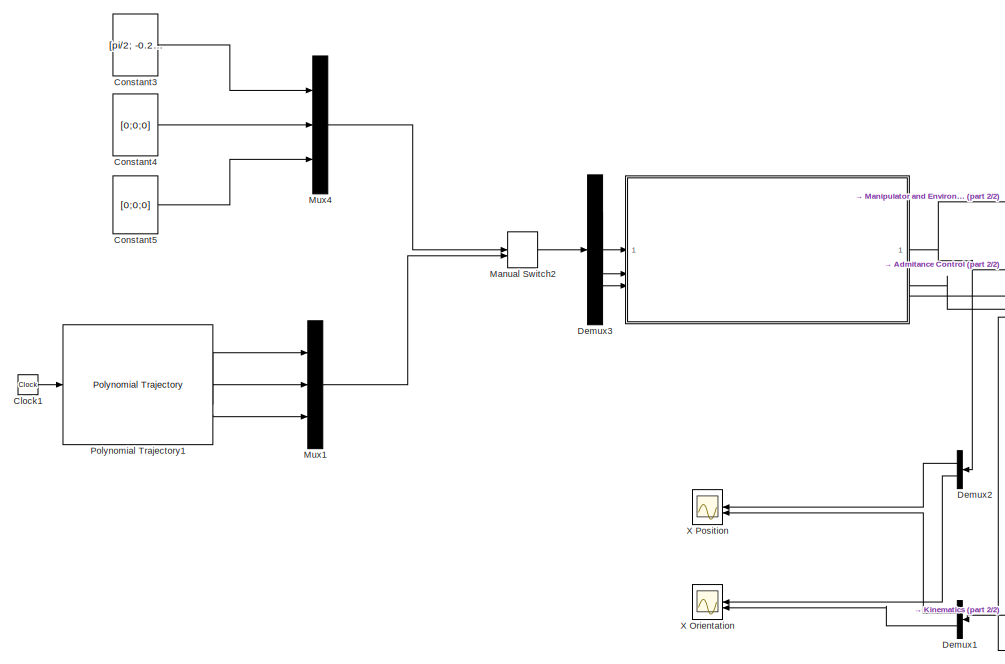
[diagram: root canvas - part 1/2, left side, full height]
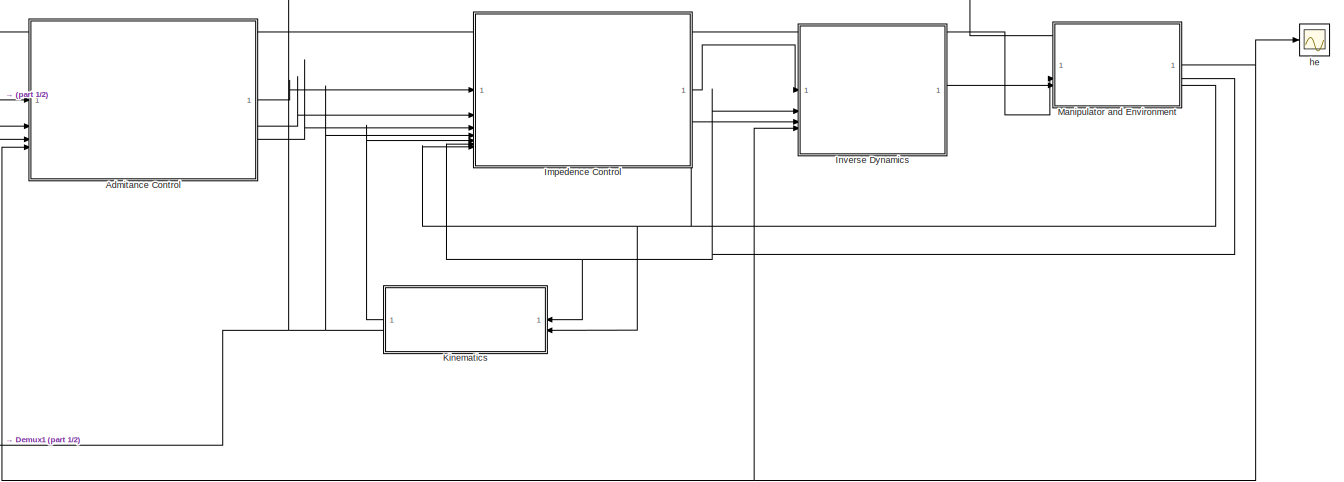
[diagram: root canvas - part 2/2, middle right region]
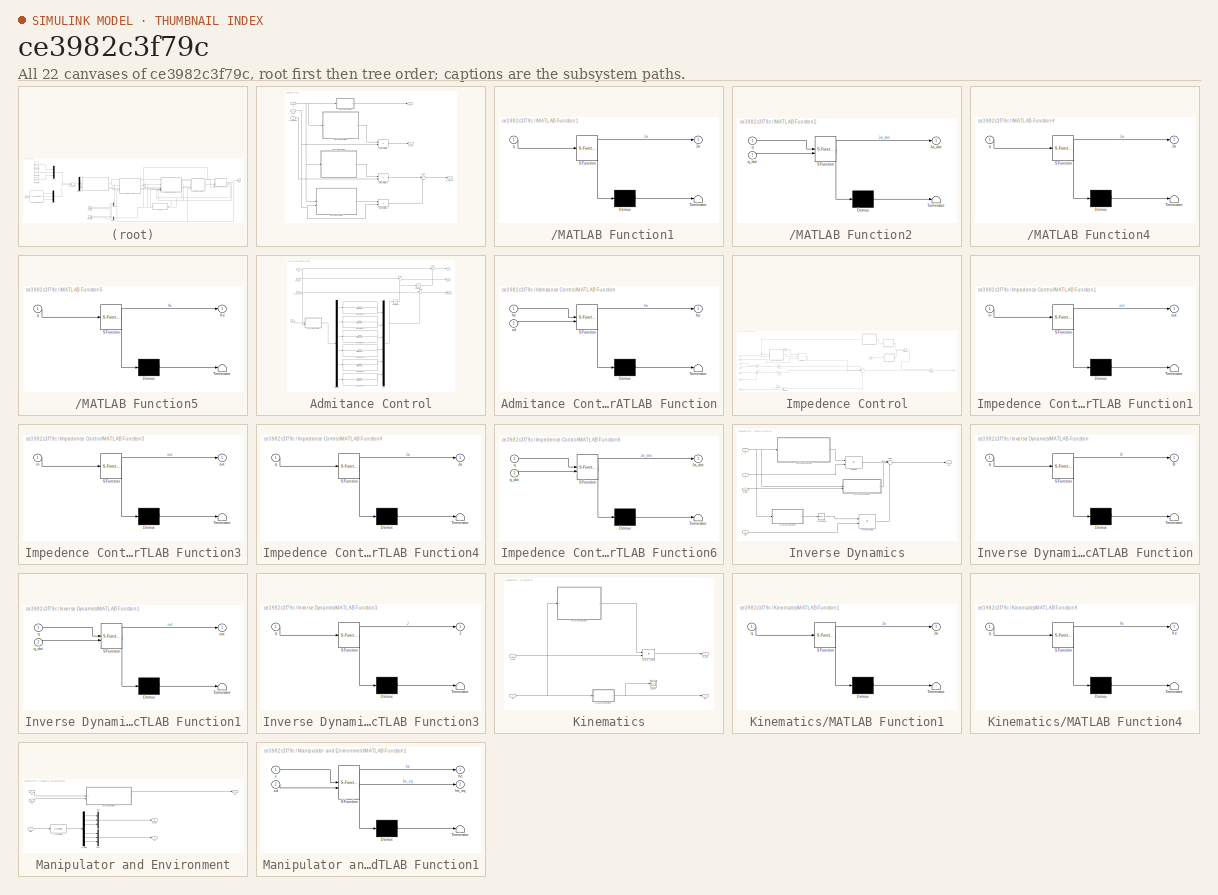
[diagram: thumbnail index - all 22 canvases of the model, root first then tree order]
MODEL slx_ce3982c3f79c
KIND model
CONFIG AbsTol = auto
CONFIG EnableMultiTasking = off
CONFIG FixedStep = auto
CONFIG MaxStep = auto
CONFIG MinStep = auto
CONFIG RelTol = 1e-3
CONFIG SampleTimeConstraint = Unconstrained
CONFIG SolverName = VariableStepAuto
CONFIG StartTime = 0.0
CONFIG StopTime = 10.0
BLOCK [SubSystem]  
BLOCK [SubSystem]  /MATLAB Function1
  ErrorFcn = Stateflow.Translate.translate
  LibrarySourceBlock = simulink/User-Defined\nFunctions/MATLAB Function
  NameLocation = top
  PermitHierarchicalResolution = ExplicitOnly
  SFBlockType = MATLAB Function
  TreatAsAtomicUnit = on
BLOCK [Demux]  /MATLAB Function1/ Demux 
  Outputs = 1
BLOCK [S-Function]  /MATLAB Function1/ SFunction 
  EnableBusSupport = on
  FunctionName = sf_sfun
  PortCounts = [1 2]
  SFcnIsStateOwnerBlock = off
  SFunctionDeploymentMode = off
  Tag = Stateflow S-Function 3
BLOCK [Terminator]  /MATLAB Function1/ Terminator 
BLOCK [Outport]  /MATLAB Function1/Ja
BLOCK [Inport]  /MATLAB Function1/q
BLOCK [SubSystem]  /MATLAB Function2
  ErrorFcn = Stateflow.Translate.translate
  LibrarySourceBlock = simulink/User-Defined\nFunctions/MATLAB Function
  PermitHierarchicalResolution = ExplicitOnly
  SFBlockType = MATLAB Function
  TreatAsAtomicUnit = on
BLOCK [Demux]  /MATLAB Function2/ Demux 
  Outputs = 1
BLOCK [S-Function]  /MATLAB Function2/ SFunction 
  EnableBusSupport = on
  FunctionName = sf_sfun
  PortCounts = [2 2]
  SFcnIsStateOwnerBlock = off
  SFunctionDeploymentMode = off
  Tag = Stateflow S-Function 18
BLOCK [Terminator]  /MATLAB Function2/ Terminator 
BLOCK [Outport]  /MATLAB Function2/Ja_dot
BLOCK [Inport]  /MATLAB Function2/q
BLOCK [Inport]  /MATLAB Function2/q_dot
  Port = 2
BLOCK [SubSystem]  /MATLAB Function4
  ErrorFcn = Stateflow.Translate.translate
  LibrarySourceBlock = simulink/User-Defined\nFunctions/MATLAB Function
  NameLocation = top
  PermitHierarchicalResolution = ExplicitOnly
  SFBlockType = MATLAB Function
  TreatAsAtomicUnit = on
BLOCK [Demux]  /MATLAB Function4/ Demux 
  Outputs = 1
BLOCK [S-Function]  /MATLAB Function4/ SFunction 
  EnableBusSupport = on
  FunctionName = sf_sfun
  PortCounts = [1 2]
  SFcnIsStateOwnerBlock = off
  SFunctionDeploymentMode = off
  Tag = Stateflow S-Function 19
BLOCK [Terminator]  /MATLAB Function4/ Terminator 
BLOCK [Outport]  /MATLAB Function4/Ja
BLOCK [Inport]  /MATLAB Function4/q
BLOCK [SubSystem]  /MATLAB Function5
  ErrorFcn = Stateflow.Translate.translate
  LibrarySourceBlock = simulink/User-Defined\nFunctions/MATLAB Function
  NameLocation = top
  PermitHierarchicalResolution = ExplicitOnly
  SFBlockType = MATLAB Function
  TreatAsAtomicUnit = on
BLOCK [Demux]  /MATLAB Function5/ Demux 
  Outputs = 1
BLOCK [S-Function]  /MATLAB Function5/ SFunction 
  EnableBusSupport = on
  FunctionName = sf_sfun
  PortCounts = [1 2]
  SFcnIsStateOwnerBlock = off
  SFunctionDeploymentMode = off
  Tag = Stateflow S-Function 20
BLOCK [Terminator]  /MATLAB Function5/ Terminator 
BLOCK [Outport]  /MATLAB Function5/Xe
BLOCK [Inport]  /MATLAB Function5/q
BLOCK [Product]  /Matrix Multiply
  Multiplication = Matrix(*)
BLOCK [Product]  /Matrix Multiply1
  LockScale = on
  Multiplication = Matrix(*)
  SaturateOnIntegerOverflow = on
BLOCK [Product]  /Matrix Multiply2
  InputSameDT = on
  Multiplication = Matrix(*)
  SaturateOnIntegerOverflow = on
BLOCK [Sum]  /Sum
  Inputs = |++
BLOCK [Outport]  /X
BLOCK [Inport]  /q
BLOCK [Inport]  /q_dot
  Port = 2
BLOCK [Inport]  /q_dot_dot
  Port = 3
BLOCK [Outport]  /x_dot
  Port = 2
BLOCK [Outport]  /x_dot_dot
  Port = 3
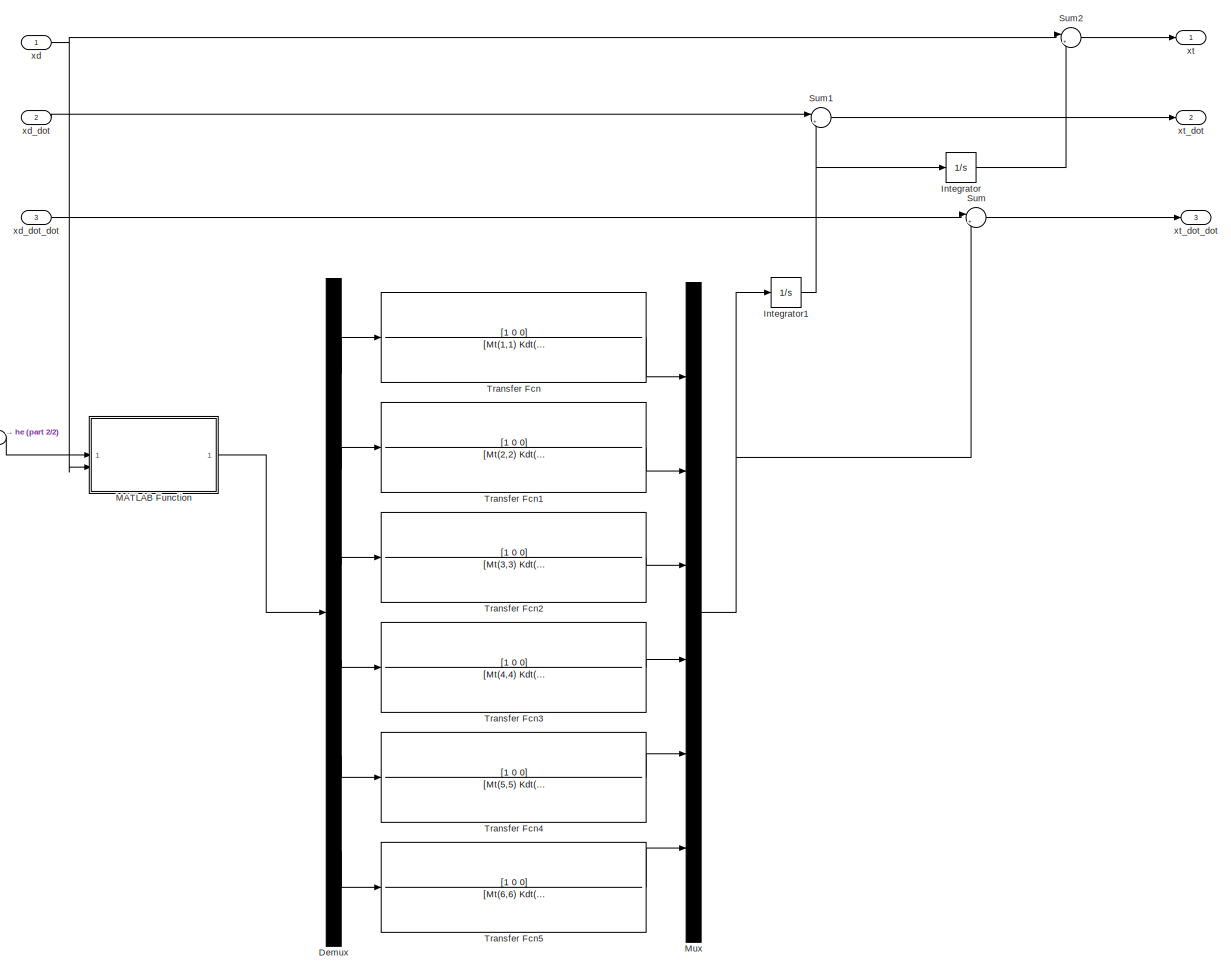
[diagram: Admitance Control - part 1/2, most of the canvas]
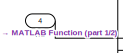
[diagram: Admitance Control - part 2/2, middle left region]
BLOCK [SubSystem] Admitance Control
BLOCK [Demux] Admitance Control/Demux
  Outputs = 6
BLOCK [Integrator] Admitance Control/Integrator
BLOCK [Integrator] Admitance Control/Integrator1
BLOCK [SubSystem] Admitance Control/MATLAB Function
  ErrorFcn = Stateflow.Translate.translate
  LibrarySourceBlock = simulink/User-Defined\nFunctions/MATLAB Function
  PermitHierarchicalResolution = ExplicitOnly
  SFBlockType = MATLAB Function
  TreatAsAtomicUnit = on
BLOCK [Demux] Admitance Control/MATLAB Function/ Demux 
  Outputs = 1
BLOCK [S-Function] Admitance Control/MATLAB Function/ SFunction 
  EnableBusSupport = on
  FunctionName = sf_sfun
  PortCounts = [2 2]
  SFcnIsStateOwnerBlock = off
  SFunctionDeploymentMode = off
  Tag = Stateflow S-Function 4
BLOCK [Terminator] Admitance Control/MATLAB Function/ Terminator 
BLOCK [Outport] Admitance Control/MATLAB Function/ha
BLOCK [Inport] Admitance Control/MATLAB Function/he
BLOCK [Inport] Admitance Control/MATLAB Function/xd
  Port = 2
BLOCK [Mux] Admitance Control/Mux
  DisplayOption = bar
  Inputs = 6
BLOCK [Sum] Admitance Control/Sum
  Inputs = |+-
BLOCK [Sum] Admitance Control/Sum1
  Inputs = |+-
BLOCK [Sum] Admitance Control/Sum2
  Inputs = |+-
BLOCK [TransferFcn] Admitance Control/Transfer Fcn
  Denominator = [Mt(1,1) Kdt(1,1) Kpt(1,1)];
  Numerator = [1 0 0]
BLOCK [TransferFcn] Admitance Control/Transfer Fcn1
  Denominator = [Mt(2,2) Kdt(2,2) Kpt(2,2)];
  Numerator = [1 0 0]
BLOCK [TransferFcn] Admitance Control/Transfer Fcn2
  Denominator = [Mt(3,3) Kdt(3,3) Kpt(3,3)];
  Numerator = [1 0 0]
BLOCK [TransferFcn] Admitance Control/Transfer Fcn3
  Denominator = [Mt(4,4) Kdt(4,4) Kpt(4,4)];
  Numerator = [1 0 0]
BLOCK [TransferFcn] Admitance Control/Transfer Fcn4
  Denominator = [Mt(5,5) Kdt(5,5) Kpt(5,5)];
  Numerator = [1 0 0]
BLOCK [TransferFcn] Admitance Control/Transfer Fcn5
  Denominator = [Mt(6,6) Kdt(6,6) Kpt(6,6)];
  Numerator = [1 0 0]
BLOCK [Inport] Admitance Control/he
  Port = 4
BLOCK [Inport] Admitance Control/xd
BLOCK [Inport] Admitance Control/xd_dot
  Port = 2
BLOCK [Inport] Admitance Control/xd_dot_dot
  Port = 3
BLOCK [Outport] Admitance Control/xt
BLOCK [Outport] Admitance Control/xt_dot
  Port = 2
BLOCK [Outport] Admitance Control/xt_dot_dot
  Port = 3
BLOCK [Clock] Clock1
BLOCK [Constant] Constant3
  Value = [pi/2; -0.2; 0.1]
  VectorParams1D = off
BLOCK [Constant] Constant4
  Value = [0;0;0]
  VectorParams1D = off
BLOCK [Constant] Constant5
  Value = [0;0;0]
  VectorParams1D = off
BLOCK [Demux] Demux1
  Outputs = 2
BLOCK [Demux] Demux2
  Outputs = 2
BLOCK [Demux] Demux3
  Outputs = 3
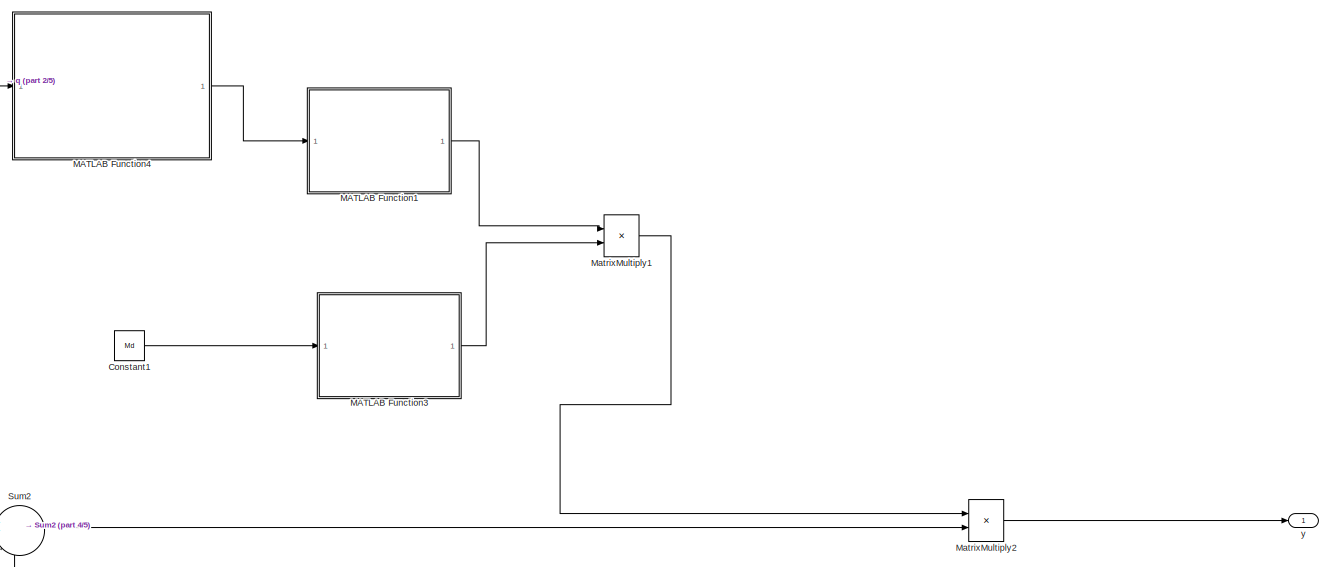
[diagram: Impedence Control - part 1/5, middle right region]
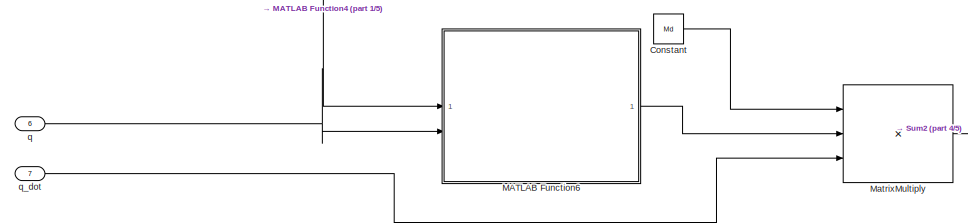
[diagram: Impedence Control - part 2/5, middle left region]
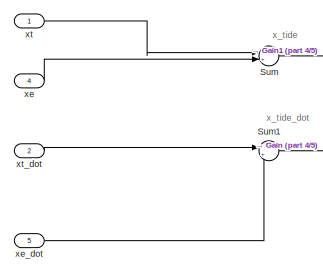
[diagram: Impedence Control - part 3/5, middle left region]
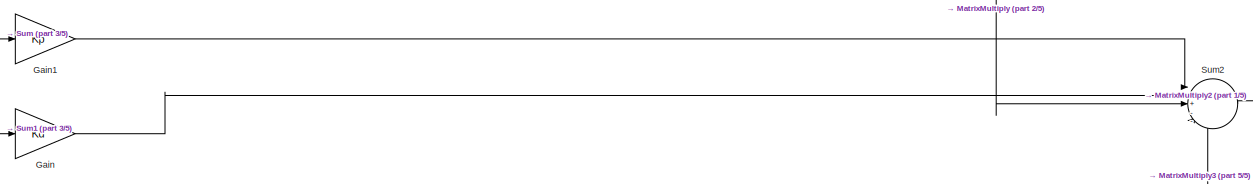
[diagram: Impedence Control - part 4/5, central region]
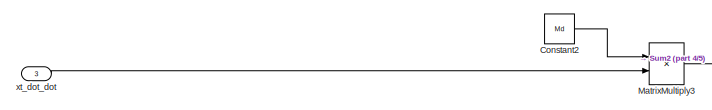
[diagram: Impedence Control - part 5/5, bottom left region]
BLOCK [SubSystem] Impedence Control
BLOCK [Constant] Impedence Control/Constant
  Value = Md
  VectorParams1D = off
BLOCK [Constant] Impedence Control/Constant1
  Value = Md
  VectorParams1D = off
BLOCK [Constant] Impedence Control/Constant2
  Value = Md
BLOCK [Gain] Impedence Control/Gain
  Gain = Kd
  Multiplication = Matrix(K*u)
BLOCK [Gain] Impedence Control/Gain1
  Gain = Kp
  Multiplication = Matrix(K*u)
BLOCK [SubSystem] Impedence Control/MATLAB Function1
  ErrorFcn = Stateflow.Translate.translate
  LibrarySourceBlock = simulink/User-Defined\nFunctions/MATLAB Function
  PermitHierarchicalResolution = ExplicitOnly
  SFBlockType = MATLAB Function
  TreatAsAtomicUnit = on
BLOCK [Demux] Impedence Control/MATLAB Function1/ Demux 
  Outputs = 1
BLOCK [S-Function] Impedence Control/MATLAB Function1/ SFunction 
  EnableBusSupport = on
  FunctionName = sf_sfun
  PortCounts = [1 2]
  SFcnIsStateOwnerBlock = off
  SFunctionDeploymentMode = off
  Tag = Stateflow S-Function 10
BLOCK [Terminator] Impedence Control/MATLAB Function1/ Terminator 
BLOCK [Inport] Impedence Control/MATLAB Function1/in
BLOCK [Outport] Impedence Control/MATLAB Function1/out
BLOCK [SubSystem] Impedence Control/MATLAB Function3
  ErrorFcn = Stateflow.Translate.translate
  LibrarySourceBlock = simulink/User-Defined\nFunctions/MATLAB Function
  PermitHierarchicalResolution = ExplicitOnly
  SFBlockType = MATLAB Function
  TreatAsAtomicUnit = on
BLOCK [Demux] Impedence Control/MATLAB Function3/ Demux 
  Outputs = 1
BLOCK [S-Function] Impedence Control/MATLAB Function3/ SFunction 
  EnableBusSupport = on
  FunctionName = sf_sfun
  PortCounts = [1 2]
  SFcnIsStateOwnerBlock = off
  SFunctionDeploymentMode = off
  Tag = Stateflow S-Function 13
BLOCK [Terminator] Impedence Control/MATLAB Function3/ Terminator 
BLOCK [Inport] Impedence Control/MATLAB Function3/in
BLOCK [Outport] Impedence Control/MATLAB Function3/out
BLOCK [SubSystem] Impedence Control/MATLAB Function4
  ErrorFcn = Stateflow.Translate.translate
  LibrarySourceBlock = simulink/User-Defined\nFunctions/MATLAB Function
  NameLocation = top
  PermitHierarchicalResolution = ExplicitOnly
  SFBlockType = MATLAB Function
  TreatAsAtomicUnit = on
BLOCK [Demux] Impedence Control/MATLAB Function4/ Demux 
  Outputs = 1
BLOCK [S-Function] Impedence Control/MATLAB Function4/ SFunction 
  EnableBusSupport = on
  FunctionName = sf_sfun
  PortCounts = [1 2]
  SFcnIsStateOwnerBlock = off
  SFunctionDeploymentMode = off
  Tag = Stateflow S-Function 14
BLOCK [Terminator] Impedence Control/MATLAB Function4/ Terminator 
BLOCK [Outport] Impedence Control/MATLAB Function4/Ja
BLOCK [Inport] Impedence Control/MATLAB Function4/q
BLOCK [SubSystem] Impedence Control/MATLAB Function6
  ErrorFcn = Stateflow.Translate.translate
  LibrarySourceBlock = simulink/User-Defined\nFunctions/MATLAB Function
  NameLocation = top
  PermitHierarchicalResolution = ExplicitOnly
  SFBlockType = MATLAB Function
  TreatAsAtomicUnit = on
BLOCK [Demux] Impedence Control/MATLAB Function6/ Demux 
  Outputs = 1
BLOCK [S-Function] Impedence Control/MATLAB Function6/ SFunction 
  EnableBusSupport = on
  FunctionName = sf_sfun
  PortCounts = [2 2]
  SFcnIsStateOwnerBlock = off
  SFunctionDeploymentMode = off
  Tag = Stateflow S-Function 17
BLOCK [Terminator] Impedence Control/MATLAB Function6/ Terminator 
BLOCK [Outport] Impedence Control/MATLAB Function6/Ja_dot
BLOCK [Inport] Impedence Control/MATLAB Function6/q
BLOCK [Inport] Impedence Control/MATLAB Function6/q_dot
  Port = 2
BLOCK [Product] Impedence Control/MatrixMultiply
  Inputs = 3
  Multiplication = Matrix(*)
BLOCK [Product] Impedence Control/MatrixMultiply1
  Multiplication = Matrix(*)
BLOCK [Product] Impedence Control/MatrixMultiply2
  Multiplication = Matrix(*)
BLOCK [Product] Impedence Control/MatrixMultiply3
  Multiplication = Matrix(*)
BLOCK [Sum] Impedence Control/Sum
  Inputs = |+-
BLOCK [Sum] Impedence Control/Sum1
  Inputs = |+-
BLOCK [Sum] Impedence Control/Sum2
  Inputs = |++--+
BLOCK [Inport] Impedence Control/q
  Port = 6
BLOCK [Inport] Impedence Control/q_dot
  Port = 7
BLOCK [Inport] Impedence Control/xe
  Port = 4
BLOCK [Inport] Impedence Control/xe_dot
  Port = 5
BLOCK [Inport] Impedence Control/xt
BLOCK [Inport] Impedence Control/xt_dot
  Port = 2
BLOCK [Inport] Impedence Control/xt_dot_dot
  Port = 3
BLOCK [Outport] Impedence Control/y
BLOCK [SubSystem] Inverse Dynamics
BLOCK [SubSystem] Inverse Dynamics/MATLAB Function
  ErrorFcn = Stateflow.Translate.translate
  LibrarySourceBlock = simulink/User-Defined\nFunctions/MATLAB Function
  PermitHierarchicalResolution = ExplicitOnly
  SFBlockType = MATLAB Function
  TreatAsAtomicUnit = on
BLOCK [Demux] Inverse Dynamics/MATLAB Function/ Demux 
  Outputs = 1
BLOCK [S-Function] Inverse Dynamics/MATLAB Function/ SFunction 
  EnableBusSupport = on
  FunctionName = sf_sfun
  Parameters = params
  PortCounts = [1 2]
  SFcnIsStateOwnerBlock = off
  SFunctionDeploymentMode = off
  Tag = Stateflow S-Function 2
BLOCK [Terminator] Inverse Dynamics/MATLAB Function/ Terminator 
BLOCK [Outport] Inverse Dynamics/MATLAB Function/B
BLOCK [Inport] Inverse Dynamics/MATLAB Function/q
BLOCK [SubSystem] Inverse Dynamics/MATLAB Function1
  ErrorFcn = Stateflow.Translate.translate
  LibrarySourceBlock = simulink/User-Defined\nFunctions/MATLAB Function
  PermitHierarchicalResolution = ExplicitOnly
  SFBlockType = MATLAB Function
  TreatAsAtomicUnit = on
BLOCK [Demux] Inverse Dynamics/MATLAB Function1/ Demux 
  Outputs = 1
BLOCK [S-Function] Inverse Dynamics/MATLAB Function1/ SFunction 
  EnableBusSupport = on
  FunctionName = sf_sfun
  Parameters = params
  PortCounts = [2 2]
  SFcnIsStateOwnerBlock = off
  SFunctionDeploymentMode = off
  Tag = Stateflow S-Function 1
BLOCK [Terminator] Inverse Dynamics/MATLAB Function1/ Terminator 
BLOCK [Outport] Inverse Dynamics/MATLAB Function1/out
BLOCK [Inport] Inverse Dynamics/MATLAB Function1/q
BLOCK [Inport] Inverse Dynamics/MATLAB Function1/q_dot
  Port = 2
BLOCK [SubSystem] Inverse Dynamics/MATLAB Function3
  ErrorFcn = Stateflow.Translate.translate
  LibrarySourceBlock = simulink/User-Defined\nFunctions/MATLAB Function
  PermitHierarchicalResolution = ExplicitOnly
  SFBlockType = MATLAB Function
  TreatAsAtomicUnit = on
BLOCK [Demux] Inverse Dynamics/MATLAB Function3/ Demux 
  Outputs = 1
BLOCK [S-Function] Inverse Dynamics/MATLAB Function3/ SFunction 
  EnableBusSupport = on
  FunctionName = sf_sfun
  PortCounts = [1 2]
  SFcnIsStateOwnerBlock = off
  SFunctionDeploymentMode = off
  Tag = Stateflow S-Function 16
BLOCK [Terminator] Inverse Dynamics/MATLAB Function3/ Terminator 
BLOCK [Outport] Inverse Dynamics/MATLAB Function3/J
BLOCK [Inport] Inverse Dynamics/MATLAB Function3/q
BLOCK [Product] Inverse Dynamics/MatrixMultiply
  Multiplication = Matrix(*)
BLOCK [Product] Inverse Dynamics/Product
  Multiplication = Matrix(*)
BLOCK [Sum] Inverse Dynamics/Sum
  Inputs = |++-
BLOCK [Math] Inverse Dynamics/Transpose
  Operator = transpose
  OutputSignalType = real
BLOCK [Inport] Inverse Dynamics/he
  Port = 4
BLOCK [Inport] Inverse Dynamics/q
  Port = 2
BLOCK [Inport] Inverse Dynamics/q_dot
  Port = 3
BLOCK [Outport] Inverse Dynamics/tau
BLOCK [Inport] Inverse Dynamics/y
BLOCK [SubSystem] Kinematics
BLOCK [SubSystem] Kinematics/MATLAB Function1
  ErrorFcn = Stateflow.Translate.translate
  LibrarySourceBlock = simulink/User-Defined\nFunctions/MATLAB Function
  NameLocation = top
  PermitHierarchicalResolution = ExplicitOnly
  SFBlockType = MATLAB Function
  TreatAsAtomicUnit = on
BLOCK [Demux] Kinematics/MATLAB Function1/ Demux 
  Outputs = 1
BLOCK [S-Function] Kinematics/MATLAB Function1/ SFunction 
  EnableBusSupport = on
  FunctionName = sf_sfun
  PortCounts = [1 2]
  SFcnIsStateOwnerBlock = off
  SFunctionDeploymentMode = off
  Tag = Stateflow S-Function 11
BLOCK [Terminator] Kinematics/MATLAB Function1/ Terminator 
BLOCK [Outport] Kinematics/MATLAB Function1/Ja
BLOCK [Inport] Kinematics/MATLAB Function1/q
BLOCK [SubSystem] Kinematics/MATLAB Function4
  ErrorFcn = Stateflow.Translate.translate
  LibrarySourceBlock = simulink/User-Defined\nFunctions/MATLAB Function
  NameLocation = top
  PermitHierarchicalResolution = ExplicitOnly
  SFBlockType = MATLAB Function
  TreatAsAtomicUnit = on
BLOCK [Demux] Kinematics/MATLAB Function4/ Demux 
  Outputs = 1
BLOCK [S-Function] Kinematics/MATLAB Function4/ SFunction 
  EnableBusSupport = on
  FunctionName = sf_sfun
  PortCounts = [1 2]
  SFcnIsStateOwnerBlock = off
  SFunctionDeploymentMode = off
  Tag = Stateflow S-Function 9
BLOCK [Terminator] Kinematics/MATLAB Function4/ Terminator 
BLOCK [Outport] Kinematics/MATLAB Function4/Xe
BLOCK [Inport] Kinematics/MATLAB Function4/q
BLOCK [Product] Kinematics/Matrix Multiply
  Multiplication = Matrix(*)
BLOCK [Scope] Kinematics/Scope
  Floating = off
  NumInputPorts = 1
  ScopeSpecificationString = Simulink.scopes.TimeScopeBlockCfg('CurrentConfiguration', extmgr.ConfigurationSet(extmgr.Configuration('Core','General UI',true),extmgr.Configuration('Core','Source UI',true),extmgr.Configuration('Sources','WiredSimulink',true,'DataLoggingVariableName','ScopeData3'),extmgr.Configuration('Visuals','Time Domain',true,'SerializedDisplays',{struct('MinYLimReal','-3.6625','MaxYLimReal','1.54656','YLabe...<+1507ch>
BLOCK [Outport] Kinematics/Xe
  Port = 2
BLOCK [Inport] Kinematics/q
BLOCK [Inport] Kinematics/q_dot
  Port = 2
BLOCK [Outport] Kinematics/xe_dot
BLOCK [SubSystem] Manipulator and Environment
BLOCK [SubSystem] Manipulator and Environment/MATLAB Function1
  ErrorFcn = Stateflow.Translate.translate
  LibrarySourceBlock = simulink/User-Defined\nFunctions/MATLAB Function
  PermitHierarchicalResolution = ExplicitOnly
  SFBlockType = MATLAB Function
  TreatAsAtomicUnit = on
BLOCK [Demux] Manipulator and Environment/MATLAB Function1/ Demux 
  Outputs = 1
BLOCK [S-Function] Manipulator and Environment/MATLAB Function1/ SFunction 
  EnableBusSupport = on
  FunctionName = sf_sfun
  Parameters = Kp,parms
  PortCounts = [2 3]
  SFcnIsStateOwnerBlock = off
  SFunctionDeploymentMode = off
  Tag = Stateflow S-Function 12
BLOCK [Terminator] Manipulator and Environment/MATLAB Function1/ Terminator 
BLOCK [Outport] Manipulator and Environment/MATLAB Function1/he
BLOCK [Outport] Manipulator and Environment/MATLAB Function1/he_eq
  Port = 2
BLOCK [Inport] Manipulator and Environment/MATLAB Function1/x
BLOCK [Inport] Manipulator and Environment/MATLAB Function1/xd
  Port = 2
BLOCK [Mux] Manipulator and Environment/Mux
  DisplayOption = bar
  Inputs = 3
BLOCK [Mux] Manipulator and Environment/Mux1
  DisplayOption = bar
  Inputs = 3
BLOCK [S-Function] Manipulator and Environment/S-Function
  EnableBusSupport = off
  FunctionName = Manipulator
  Parameters = params
  SFcnIsStateOwnerBlock = off
  SFunctionDeploymentMode = off
BLOCK [Outport] Manipulator and Environment/he
BLOCK [Outport] Manipulator and Environment/q
  Port = 2
BLOCK [Outport] Manipulator and Environment/q_dot
  Port = 3
BLOCK [Demux] Manipulator and Environment/q_dot | q
  Outputs = 6
BLOCK [Inport] Manipulator and Environment/tau
  Port = 3
BLOCK [Inport] Manipulator and Environment/xd
  Port = 2
BLOCK [Inport] Manipulator and Environment/xe
BLOCK [ManualSwitch] Manual Switch2
  CurrentSetting = 0
BLOCK [Mux] Mux1
  DisplayOption = bar
  Inputs = 3
BLOCK [Mux] Mux4
  DisplayOption = bar
  Inputs = 3
BLOCK [Reference] Polynomial Trajectory1  REF=robotcorelib/Polynomial Trajectory
  LibrarySourceBlock = robotutilslib/Polynomial Trajectory
  SourceBlock = robotcorelib/Polynomial Trajectory
  SourceType = robotics.slcore.internal.block.PolyTrajSys
BLOCK [Scope] X Orientation
  Floating = off
  NumInputPorts = 2
  ScopeSpecificationString = Simulink.scopes.TimeScopeBlockCfg('CurrentConfiguration', extmgr.ConfigurationSet(extmgr.Configuration('Core','General UI',true),extmgr.Configuration('Core','Source UI',true),extmgr.Configuration('Sources','WiredSimulink',true,'DataLoggingVariableName','ScopeData1'),extmgr.Configuration('Visuals','Time Domain',true,'SerializedDisplays',{struct('MinYLimReal','-3.45044','MaxYLimReal','-0.36195','YLa...<+1978ch>
BLOCK [Scope] X Position
  Floating = off
  NumInputPorts = 2
  ScopeSpecificationString = Simulink.scopes.TimeScopeBlockCfg('CurrentConfiguration', extmgr.ConfigurationSet(extmgr.Configuration('Core','General UI',true),extmgr.Configuration('Core','Source UI',true),extmgr.Configuration('Sources','WiredSimulink',true,'DataLoggingVariableName','ScopeData2'),extmgr.Configuration('Visuals','Time Domain',true,'SerializedDisplays',{struct('MinYLimReal','-0.70948','MaxYLimReal','1.7853','YLabe...<+2401ch>
BLOCK [Scope] he
  Floating = off
  NumInputPorts = 1
  ScopeSpecificationString = Simulink.scopes.TimeScopeBlockCfg('CurrentConfiguration', extmgr.ConfigurationSet(extmgr.Configuration('Core','General UI',true),extmgr.Configuration('Core','Source UI',true),extmgr.Configuration('Sources','WiredSimulink',true,'DataLoggingVariableName','ScopeData5'),extmgr.Configuration('Visuals','Time Domain',true,'SerializedDisplays',{struct('MinYLimReal','-14.85924','MaxYLimReal','133.73319','Y...<+1747ch>
ANNOTATION Impedence Control: x_tide
ANNOTATION Impedence Control: x_tide_dot
LINE  /MATLAB Function1:1 ->  /Matrix Multiply1:1
LINE  /MATLAB Function2:1 ->  /Matrix Multiply2:1
LINE  /MATLAB Function4:1 ->  /Matrix Multiply:1
LINE  /MATLAB Function5:1 ->  /X:1
LINE  /Matrix Multiply1:1 ->  /Sum:1
LINE  /Matrix Multiply2:1 ->  /Sum:2
LINE  /Matrix Multiply:1 ->  /x_dot:1
LINE  /Sum:1 ->  /x_dot_dot:1
NET  /q:1 ->  /MATLAB Function1:1,  /MATLAB Function2:1,  /MATLAB Function4:1,  /MATLAB Function5:1
NET  /q_dot:1 ->  /MATLAB Function2:2,  /Matrix Multiply2:2,  /Matrix Multiply:2
LINE  /q_dot_dot:1 ->  /Matrix Multiply1:2
NET  :1 -> Admitance Control:1, Demux2:1, Manipulator and Environment:2
LINE  :2 -> Admitance Control:2
LINE  :3 -> Admitance Control:3
LINE Admitance Control/Demux:1 -> Admitance Control/Transfer Fcn:1
LINE Admitance Control/Demux:2 -> Admitance Control/Transfer Fcn1:1
LINE Admitance Control/Demux:3 -> Admitance Control/Transfer Fcn2:1
LINE Admitance Control/Demux:4 -> Admitance Control/Transfer Fcn3:1
LINE Admitance Control/Demux:5 -> Admitance Control/Transfer Fcn4:1
LINE Admitance Control/Demux:6 -> Admitance Control/Transfer Fcn5:1
NET Admitance Control/Integrator1:1 -> Admitance Control/Integrator:1, Admitance Control/Sum1:2
LINE Admitance Control/Integrator:1 -> Admitance Control/Sum2:2
LINE Admitance Control/MATLAB Function:1 -> Admitance Control/Demux:1
NET Admitance Control/Mux:1 -> Admitance Control/Integrator1:1, Admitance Control/Sum:2
LINE Admitance Control/Sum1:1 -> Admitance Control/xt_dot:1
LINE Admitance Control/Sum2:1 -> Admitance Control/xt:1
LINE Admitance Control/Sum:1 -> Admitance Control/xt_dot_dot:1
LINE Admitance Control/Transfer Fcn1:1 -> Admitance Control/Mux:2
LINE Admitance Control/Transfer Fcn2:1 -> Admitance Control/Mux:3
LINE Admitance Control/Transfer Fcn3:1 -> Admitance Control/Mux:4
LINE Admitance Control/Transfer Fcn4:1 -> Admitance Control/Mux:5
LINE Admitance Control/Transfer Fcn5:1 -> Admitance Control/Mux:6
LINE Admitance Control/Transfer Fcn:1 -> Admitance Control/Mux:1
LINE Admitance Control/he:1 -> Admitance Control/MATLAB Function:1
NET Admitance Control/xd:1 -> Admitance Control/MATLAB Function:2, Admitance Control/Sum2:1
LINE Admitance Control/xd_dot:1 -> Admitance Control/Sum1:1
LINE Admitance Control/xd_dot_dot:1 -> Admitance Control/Sum:1
LINE Admitance Control:1 -> Impedence Control:1
LINE Admitance Control:2 -> Impedence Control:2
LINE Admitance Control:3 -> Impedence Control:3
LINE Clock1:1 -> Polynomial Trajectory1:1
LINE Constant3:1 -> Mux4:1
LINE Constant4:1 -> Mux4:2
LINE Constant5:1 -> Mux4:3
LINE Demux1:1 -> X Position:2
LINE Demux1:2 -> X Orientation:2
LINE Demux2:1 -> X Position:1
LINE Demux2:2 -> X Orientation:1
LINE Demux3:1 ->  :1
LINE Demux3:2 ->  :2
LINE Demux3:3 ->  :3
LINE Impedence Control/Constant1:1 -> Impedence Control/MATLAB Function3:1
LINE Impedence Control/Constant2:1 -> Impedence Control/MatrixMultiply3:1
LINE Impedence Control/Constant:1 -> Impedence Control/MatrixMultiply:1
LINE Impedence Control/Gain1:1 -> Impedence Control/Sum2:1
LINE Impedence Control/Gain:1 -> Impedence Control/Sum2:2
LINE Impedence Control/MATLAB Function1:1 -> Impedence Control/MatrixMultiply1:1
LINE Impedence Control/MATLAB Function3:1 -> Impedence Control/MatrixMultiply1:2
LINE Impedence Control/MATLAB Function4:1 -> Impedence Control/MATLAB Function1:1
LINE Impedence Control/MATLAB Function6:1 -> Impedence Control/MatrixMultiply:2
LINE Impedence Control/MatrixMultiply1:1 -> Impedence Control/MatrixMultiply2:1
LINE Impedence Control/MatrixMultiply2:1 -> Impedence Control/y:1
LINE Impedence Control/MatrixMultiply3:1 -> Impedence Control/Sum2:5
LINE Impedence Control/MatrixMultiply:1 -> Impedence Control/Sum2:3
LINE Impedence Control/Sum1:1 -> Impedence Control/Gain:1
LINE Impedence Control/Sum2:1 -> Impedence Control/MatrixMultiply2:2
LINE Impedence Control/Sum:1 -> Impedence Control/Gain1:1
NET Impedence Control/q:1 -> Impedence Control/MATLAB Function4:1, Impedence Control/MATLAB Function6:1, Impedence Control/MATLAB Function6:2
LINE Impedence Control/q_dot:1 -> Impedence Control/MatrixMultiply:3
LINE Impedence Control/xe:1 -> Impedence Control/Sum:2
LINE Impedence Control/xe_dot:1 -> Impedence Control/Sum1:2
LINE Impedence Control/xt:1 -> Impedence Control/Sum:1
LINE Impedence Control/xt_dot:1 -> Impedence Control/Sum1:1
LINE Impedence Control/xt_dot_dot:1 -> Impedence Control/MatrixMultiply3:2
LINE Impedence Control:1 -> Inverse Dynamics:1
LINE Inverse Dynamics/MATLAB Function1:1 -> Inverse Dynamics/Sum:2
LINE Inverse Dynamics/MATLAB Function3:1 -> Inverse Dynamics/Transpose:1
LINE Inverse Dynamics/MATLAB Function:1 -> Inverse Dynamics/Product:1
LINE Inverse Dynamics/MatrixMultiply:1 -> Inverse Dynamics/Sum:3
LINE Inverse Dynamics/Product:1 -> Inverse Dynamics/Sum:1
LINE Inverse Dynamics/Sum:1 -> Inverse Dynamics/tau:1
LINE Inverse Dynamics/Transpose:1 -> Inverse Dynamics/MatrixMultiply:1
LINE Inverse Dynamics/he:1 -> Inverse Dynamics/MatrixMultiply:2
NET Inverse Dynamics/q:1 -> Inverse Dynamics/MATLAB Function1:1, Inverse Dynamics/MATLAB Function3:1, Inverse Dynamics/MATLAB Function:1
LINE Inverse Dynamics/q_dot:1 -> Inverse Dynamics/MATLAB Function1:2
LINE Inverse Dynamics/y:1 -> Inverse Dynamics/Product:2
LINE Inverse Dynamics:1 -> Manipulator and Environment:3
LINE Kinematics/MATLAB Function1:1 -> Kinematics/Matrix Multiply:1
NET Kinematics/MATLAB Function4:1 -> Kinematics/Scope:1, Kinematics/Xe:1
LINE Kinematics/Matrix Multiply:1 -> Kinematics/xe_dot:1
NET Kinematics/q:1 -> Kinematics/MATLAB Function1:1, Kinematics/MATLAB Function4:1
LINE Kinematics/q_dot:1 -> Kinematics/Matrix Multiply:2
LINE Kinematics:1 -> Impedence Control:5
NET Kinematics:2 -> Demux1:1, Impedence Control:4, Manipulator and Environment:1
LINE Manipulator and Environment/MATLAB Function1:1 -> Manipulator and Environment/he:1
LINE Manipulator and Environment/Mux1:1 -> Manipulator and Environment/q:1
LINE Manipulator and Environment/Mux:1 -> Manipulator and Environment/q_dot:1
LINE Manipulator and Environment/S-Function:1 -> Manipulator and Environment/q_dot | q:1
LINE Manipulator and Environment/q_dot | q:1 -> Manipulator and Environment/Mux:1
LINE Manipulator and Environment/q_dot | q:2 -> Manipulator and Environment/Mux:2
LINE Manipulator and Environment/q_dot | q:3 -> Manipulator and Environment/Mux:3
LINE Manipulator and Environment/q_dot | q:4 -> Manipulator and Environment/Mux1:1
LINE Manipulator and Environment/q_dot | q:5 -> Manipulator and Environment/Mux1:2
LINE Manipulator and Environment/q_dot | q:6 -> Manipulator and Environment/Mux1:3
LINE Manipulator and Environment/tau:1 -> Manipulator and Environment/S-Function:1
LINE Manipulator and Environment/xd:1 -> Manipulator and Environment/MATLAB Function1:2
LINE Manipulator and Environment/xe:1 -> Manipulator and Environment/MATLAB Function1:1
NET Manipulator and Environment:1 -> Admitance Control:4, Inverse Dynamics:4, he:1
NET Manipulator and Environment:2 -> Impedence Control:6, Inverse Dynamics:2, Kinematics:1
NET Manipulator and Environment:3 -> Impedence Control:7, Inverse Dynamics:3, Kinematics:2
LINE Manual Switch2:1 -> Demux3:1
LINE Mux1:1 -> Manual Switch2:2
LINE Mux4:1 -> Manual Switch2:1
LINE Polynomial Trajectory1:1 -> Mux1:1
LINE Polynomial Trajectory1:2 -> Mux1:2
LINE Polynomial Trajectory1:3 -> Mux1:3
note: NET lines group one-source signal fan-out (src -> all destinations, sorted); 1:1 wires keep LINE
CHART Impedence Control/MATLAB Function6 states=1 transitions=1
  STATE_LABEL 'eML_blk_kernel()'
  STATE_LABEL 'SCRIPT:\nfunction Ja_dot = AnalyticalJacobian_Dot(q, q_dot)\nq1 = q(1);\nq2 = q(2);\nq3 = q(3);\n\nq1_dot = q_dot(1);\nq2_dot = q_dot(2);\nq3_dot = q_dot(3);\n\n    r1 = 0.4;\n    a1 = 0.02;\n    a2 = 0.03;\n    a3 = 0.01;\n    b1 = 0.1256;\n    b2 = 0.03;\n    b3 = 0.01;\n    c1 = 0.4;\n    c2 = 0.46;\n    c3 = 0.15;\n\n\n     H = [[0, -sin(q1), cos(q1),              cos(q1)*(c1 + c3 + q3)]\n[1,        0,       0,     ...<+644ch>'
CHART  /MATLAB Function2 states=1 transitions=1
  STATE_LABEL 'eML_blk_kernel()'
  STATE_LABEL 'SCRIPT:\nfunction Ja_dot = AnalyticalJacobian_Dot(q, q_dot)\nq1 = q(1);\nq2 = q(2);\nq3 = q(3);\n\nq1_dot = q_dot(1);\nq2_dot = q_dot(2);\nq3_dot = q_dot(3);\n\n    r1 = 0.4;\n    a1 = 0.02;\n    a2 = 0.03;\n    a3 = 0.01;\n    b1 = 0.1256;\n    b2 = 0.03;\n    b3 = 0.01;\n    c1 = 0.4;\n    c2 = 0.46;\n    c3 = 0.15;\n\n\n     H = [[0, -sin(q1), cos(q1),              cos(q1)*(c1 + c3 + q3)]\n[1,        0,       0,     ...<+644ch>'
CHART  /MATLAB Function4 states=1 transitions=1
  STATE_LABEL 'eML_blk_kernel()'
  STATE_LABEL 'SCRIPT:\nfunction Ja = AnalyticalJacobian(q)\n    q1 = q(1);\n    q2 = q(2);\n    q3 = q(3);\n\n    r1 = 0.4;\n    a1 = 0.02;\n    a2 = 0.03;\n    a3 = 0.01;\n    b1 = 0.1256;\n    b2 = 0.03;\n    b3 = 0.01;\n    c1 = 0.4;\n    c2 = 0.46;\n    c3 = 0.15;\n\n    H = [[0, -sin(q1), cos(q1),              cos(q1)*(c1 + c3 + q3)]\n[1,        0,       0,                           - c2 - q2]\n[0,  cos(q1), sin(q1), r1 + si...<+525ch>'  <repeated x4 — deduplicated; at blocks: MATLAB Function4, MATLAB Function1>
CHART  /MATLAB Function5 states=1 transitions=1
  STATE_LABEL 'eML_blk_kernel()'
  STATE_LABEL 'SCRIPT:\nfunction Xe = Kinematics(q)\n    q1 = q(1);\n    q2 = q(2);\n    q3 = q(3);\n    \n    r1 = 0.4;\n    a1 = 0.02;\n    a2 = 0.03;\n    a3 = 0.01;\n    b1 = 0.1256;\n    b2 = 0.03;\n    b3 = 0.01;\n    c1 = 0.4;\n    c2 = 0.46;\n    c3 = 0.15;\n\n    H = [[0, -sin(q1), cos(q1),              cos(q1)*(c1 + c3 + q3)]\n[1,        0,       0,                           - c2 - q2]\n[0,  cos(q1), sin(q1), r1 + sin(q1...<+165ch>'
CHART Inverse Dynamics/MATLAB Function1 states=1 transitions=1
  STATE_LABEL 'eML_blk_kernel()'
  STATE_LABEL 'SCRIPT:\nfunction out = n(q, q_dot, params)\n    \n    m1 = params.m(1);\n    m2 = params.m(2);\n    m3 = params.m(3);\n\n    q1 = q(1);\n    q2 = q(2);\n    q3 = q(3);\n\n    q1_dot = q_dot(1);\n    q2_dot = q_dot(2);\n    q3_dot = q_dot(3);\n    \n    r1 = 0.4;\n    a1 = 0.02;\n    a2 = 0.03;\n    a3 = 0.01;\n    b1 = 0.1256;\n    b2 = 0.03;\n    b3 = 0.01;\n    c1 = 0.4;\n    c2 = 0.46;\n    c3 = 0.15;\n    g = params....<+1113ch>'
CHART Inverse Dynamics/MATLAB Function states=1 transitions=1
  STATE_LABEL 'eML_blk_kernel()'
  STATE_LABEL 'SCRIPT:\nfunction B = inertiaMatrix(q, params)\n    q1 = q(1); % not used in this matrix\n    q2 = q(2);\n    q3 = q(3);\n\n    m1 = params.m(1);\n    m2 = params.m(2);\n    m3 = params.m(3);\n        \n    r1 = 0.4;\n    a1 = 0.02;\n    a2 = 0.03;\n    a3 = 0.01;\n    b1 = 0.1256;\n    b2 = 0.03;\n    b3 = 0.01;\n    c1 = 0.4;\n    c2 = 0.46;\n    c3 = 0.15;\n\n   B = [[(a2^2*m2)/12 + (3*a1^4*m1)/2 + (a3^2*m3)/12 + (...<+629ch>'
CHART  /MATLAB Function1 states=1 transitions=1
  STATE_LABEL 'eML_blk_kernel()'
CHART Admitance Control/MATLAB Function states=1 transitions=1
  STATE_LABEL 'eML_blk_kernel()'
  STATE_LABEL "SCRIPT:\nfunction ha = he_d_e(he, xd)\n\n        euler = xd(4:6);\n\n        phi1 = euler(1);\n        phi2 = euler(2);\n\n        T = [[0, -sin(phi1) ,    cos(phi1)*sin(phi2)];\n                 [0,  cos(phi1) ,   sin(phi1)*sin(phi2)];\n                 [1,               0  ,    cos(phi2)]];\n\n        Ta = [[eye(3), zeros(3)];\n              [zeros(3), T]];\n\n\n        ha = Ta'*he;\nend\n    \n"
CHART Kinematics/MATLAB Function4 states=1 transitions=1
  STATE_LABEL 'eML_blk_kernel()'
  STATE_LABEL 'SCRIPT:\nfunction Xe = Kinematics(q)\n    q1 = q(1);\n    q2 = q(2);\n    q3 = q(3);\n    \n    r1 = 0.4;\n    a1 = 0.02;\n    a2 = 0.03;\n    a3 = 0.01;\n    b1 = 0.1256;\n    b2 = 0.03;\n    b3 = 0.01;\n    c1 = 0.4;\n    c2 = 0.46;\n    c3 = 0.15;\n\n    H = [[0, -sin(q1), cos(q1),              cos(q1)*(c1 + c3 + q3)]\n[1,        0,       0,                           - c2 - q2]\n[0,  cos(q1), sin(q1), r1 + sin(q1...<+164ch>'
CHART Impedence Control/MATLAB Function1 states=1 transitions=1
  STATE_LABEL 'eML_blk_kernel()'
  STATE_LABEL 'SCRIPT:\nfunction out = inv(in)\n    out = pinv(in);\nend\n'
CHART Kinematics/MATLAB Function1 states=1 transitions=1
  STATE_LABEL 'eML_blk_kernel()'
CHART Manipulator and Environment/MATLAB Function1 states=1 transitions=1
  STATE_LABEL 'eML_blk_kernel()'
  STATE_LABEL 'SCRIPT:\nfunction [he,he_eq]= Environment(x, xd, parms, Kp)\n    if(x(parms.plane_axis) >= parms.plane_pos(parms.plane_axis))\n        xr = parms.plane_pos;\n\n        xdes = zeros(6,1);\n        xdes(parms.plane_axis) = xd(parms.plane_axis);\n\n        xe = zeros(6,1);\n        xe(parms.plane_axis) = x(parms.plane_axis);\n\n        he = parms.Ke * (xe - xr);\n\n        he_eq = pinv(eye(6) + parms.Ke*pinv(Kp))...<+98ch>'
CHART Impedence Control/MATLAB Function3 states=1 transitions=1
  STATE_LABEL 'eML_blk_kernel()'
  STATE_LABEL 'SCRIPT:\nfunction out = inv(in)\n    out = pinv(in);\nend\n'
CHART Impedence Control/MATLAB Function4 states=1 transitions=1
  STATE_LABEL 'eML_blk_kernel()'
CHART Inverse Dynamics/MATLAB Function3 states=1 transitions=1
  STATE_LABEL 'eML_blk_kernel()'
  STATE_LABEL 'SCRIPT:\nfunction J = GeomatricalJacobian(q)\nq1 = q(1);\nq2 = q(2);\nq3 = q(3);\n   \n    r1 = 0.4;\n    a1 = 0.02;\n    a2 = 0.03;\n    a3 = 0.01;\n    b1 = 0.1256;\n    b2 = 0.03;\n    b3 = 0.01;\n    c1 = 0.4;\n    c2 = 0.46;\n    c3 = 0.15;\n\n    J = [\n[-sin(q1)*(c1 + c3 + q3),  0, cos(q1)]\n[                      0, -1,       0]\n[ cos(q1)*(c1 + c3 + q3),  0, sin(q1)]\n[                      0,  0,       0]\n[ ...<+83ch>'
CHART  states=0 transitions=0
CHART  states=0 transitions=0
CHART  states=0 transitions=0
CHART  states=0 transitions=0
CHART  states=0 transitions=0
CHART  states=0 transitions=0
CHART  states=0 transitions=0
CHART  states=0 transitions=0
CHART  states=0 transitions=0
CHART  states=0 transitions=0
CHART  states=0 transitions=0
CHART  states=0 transitions=0
CHART  states=0 transitions=0
CHART  states=0 transitions=0
CHART  states=0 transitions=0
